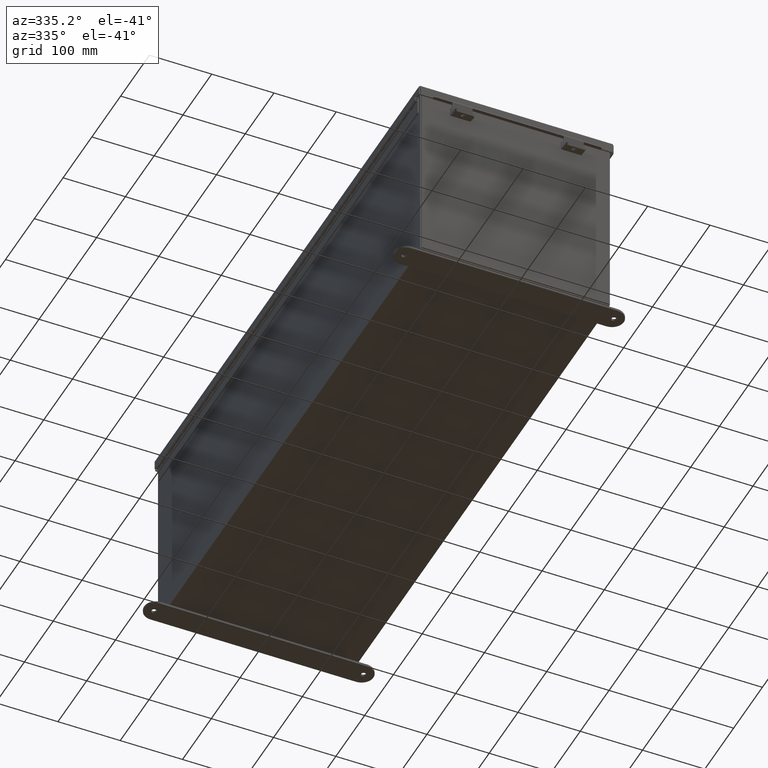
[diagram: clean part render]
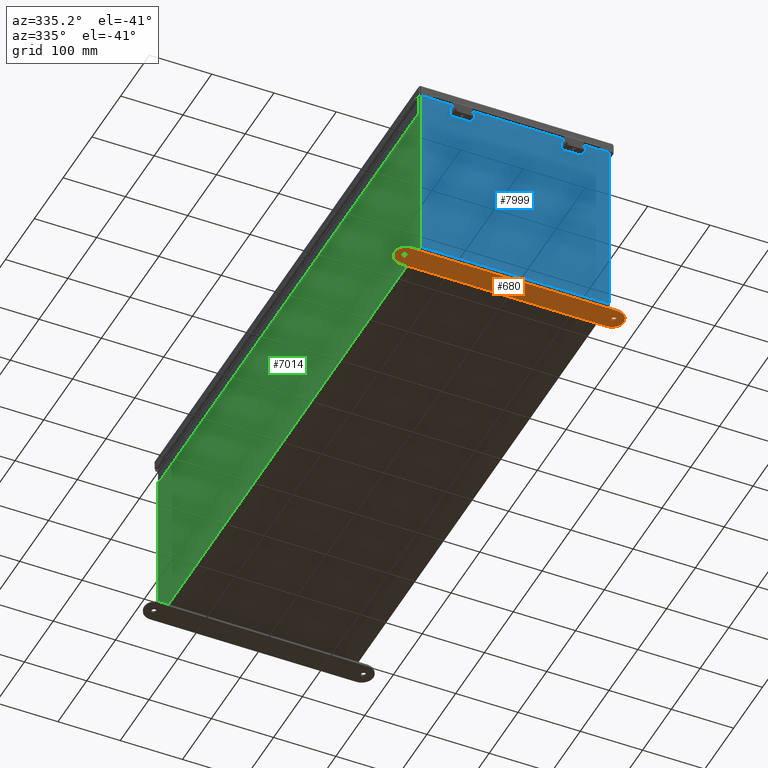
[diagram: same view with three faces highlighted in distinct colors, each labeled with its STEP entity id]
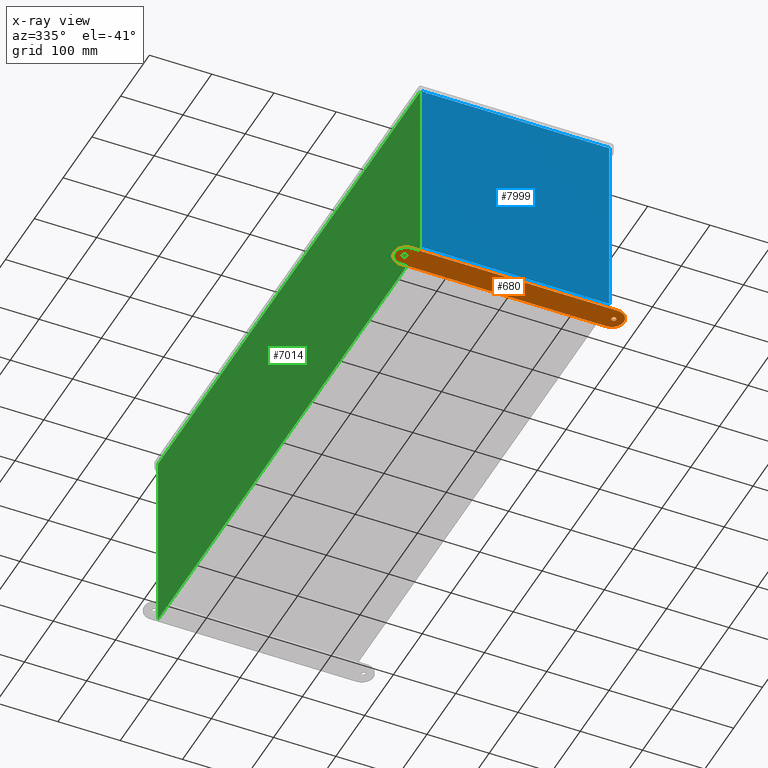
[diagram: x-ray of the same camera — body ghosted, the three highlighted faces saturated]
A machine part, auxiliary view with three faces highlighted in distinct colors.
The next image is the same camera in x-ray (body ghosted, the three faces saturated) — at least one of them is partly hidden behind the body in this view.
Their STEP definitions:

[orange] entity #680 — the highlighted planar face has unit normal (0, 0, -1).
#410 = VERTEX_POINT ( 'NONE', #18670 ) ;
#680 = ADVANCED_FACE ( 'NONE', ( #14462, #26613, #8469 ), #29515, .T. ) ;
#986 = CARTESIAN_POINT ( 'NONE',  ( -6.500000000000000000, 1.162094064949612300, -0.1345000000000000100 ) ) ;
#997 = EDGE_CURVE ( 'NONE', #23226, #410, #24075, .T. ) ;
#1026 = VERTEX_POINT ( 'NONE', #15839 ) ;
#1368 = ORIENTED_EDGE ( 'NONE', *, *, #18372, .T. ) ;
#1823 = EDGE_LOOP ( 'NONE', ( #1368, #9089 ) ) ;
#1921 = EDGE_CURVE ( 'NONE', #9717, #1026, #14747, .T. ) ;
#1933 = LINE ( 'NONE', #18808, #26162 ) ;
#2966 = CARTESIAN_POINT ( 'NONE',  ( 6.500000000000000000, 1.162094064949614100, -0.1345000000000000100 ) ) ;
#3501 = AXIS2_PLACEMENT_3D ( 'NONE', #25441, #11801, #27754 ) ;
#3983 = CARTESIAN_POINT ( 'NONE',  ( 6.500000000000000000, 0.4120940649496125900, -0.1345000000000000100 ) ) ;
#4097 = CARTESIAN_POINT ( 'NONE',  ( 6.781499999999999400, 0.4120940649496083700, -0.1345000000000000100 ) ) ;
#4284 = CIRCLE ( 'NONE', #3501, 0.1564999999999992800 ) ;
#4991 = AXIS2_PLACEMENT_3D ( 'NONE', #8532, #24419, #10815 ) ;
#5049 = ORIENTED_EDGE ( 'NONE', *, *, #1921, .F. ) ;
#5284 = CARTESIAN_POINT ( 'NONE',  ( 7.250000000000001800, 0.4120940649496125900, -0.1345000000000000100 ) ) ;
#5427 = CARTESIAN_POINT ( 'NONE',  ( 6.625000000000000900, 0.4120940649496083700, -0.1345000000000000100 ) ) ;
#5606 = DIRECTION ( 'NONE',  ( -1.000000000000000000, -1.260852920152736700E-016, -0.0000000000000000000 ) ) ;
#6287 = DIRECTION ( 'NONE',  ( -1.000000000000000000, 0.0000000000000000000, 0.0000000000000000000 ) ) ;
#6364 = EDGE_LOOP ( 'NONE', ( #28585, #16755, #13219, #5049, #21971 ) ) ;
#6834 = DIRECTION ( 'NONE',  ( 0.0000000000000000000, 0.0000000000000000000, 1.000000000000000000 ) ) ;
#7725 = DIRECTION ( 'NONE',  ( -1.000000000000000000, 0.0000000000000000000, 0.0000000000000000000 ) ) ;
#8044 = VECTOR ( 'NONE', #5606, 39.37007874015748100 ) ;
#8469 = FACE_BOUND ( 'NONE', #25620, .T. ) ;
#8532 = CARTESIAN_POINT ( 'NONE',  ( -6.500000000000000000, 0.4120940649496124300, -0.1345000000000000100 ) ) ;
#8593 = ORIENTED_EDGE ( 'NONE', *, *, #997, .F. ) ;
#9089 = ORIENTED_EDGE ( 'NONE', *, *, #17118, .T. ) ;
#9279 = CARTESIAN_POINT ( 'NONE',  ( 6.500000000000000000, -0.3379059350503891300, -0.1345000000000000100 ) ) ;
#9596 = CARTESIAN_POINT ( 'NONE',  ( -6.468500000000001500, 0.4120940649496083700, -0.1345000000000000100 ) ) ;
#9717 = VERTEX_POINT ( 'NONE', #2966 ) ;
#9792 = DIRECTION ( 'NONE',  ( 1.000000000000000000, -1.260852920152736700E-016, 0.0000000000000000000 ) ) ;
#10780 = VERTEX_POINT ( 'NONE', #9596 ) ;
#10815 = DIRECTION ( 'NONE',  ( 1.000000000000000000, 0.0000000000000000000, 0.0000000000000000000 ) ) ;
#11196 = CARTESIAN_POINT ( 'NONE',  ( 6.625000000000000900, 0.4120940649496083700, -0.1345000000000000100 ) ) ;
#11276 = CARTESIAN_POINT ( 'NONE',  ( 6.500000000000000000, 0.4120940649496125900, -0.1345000000000000100 ) ) ;
#11345 = DIRECTION ( 'NONE',  ( 0.0000000000000000000, 0.0000000000000000000, 1.000000000000000000 ) ) ;
#11801 = DIRECTION ( 'NONE',  ( 0.0000000000000000000, 0.0000000000000000000, 1.000000000000000000 ) ) ;
#13219 = ORIENTED_EDGE ( 'NONE', *, *, #25738, .F. ) ;
#13454 = DIRECTION ( 'NONE',  ( -1.000000000000000000, 0.0000000000000000000, 0.0000000000000000000 ) ) ;
#13456 = VERTEX_POINT ( 'NONE', #5284 ) ;
#14462 = FACE_OUTER_BOUND ( 'NONE', #6364, .T. ) ;
#14747 = LINE ( 'NONE', #986, #8044 ) ;
#15366 = EDGE_CURVE ( 'NONE', #27841, #17187, #1933, .T. ) ;
#15513 = CIRCLE ( 'NONE', #4991, 0.7499999999999993300 ) ;
#15664 = EDGE_CURVE ( 'NONE', #13456, #9717, #23624, .T. ) ;
#15839 = CARTESIAN_POINT ( 'NONE',  ( -6.500000000000000000, 1.162094064949612300, -0.1345000000000000100 ) ) ;
#16755 = ORIENTED_EDGE ( 'NONE', *, *, #15366, .F. ) ;
#16951 = CIRCLE ( 'NONE', #19923, 0.7500000000000015500 ) ;
#17118 = EDGE_CURVE ( 'NONE', #26328, #10780, #27525, .T. ) ;
#17187 = VERTEX_POINT ( 'NONE', #9279 ) ;
#18013 = DIRECTION ( 'NONE',  ( -1.000000000000000000, 0.0000000000000000000, 0.0000000000000000000 ) ) ;
#18372 = EDGE_CURVE ( 'NONE', #10780, #26328, #4284, .T. ) ;
#18670 = CARTESIAN_POINT ( 'NONE',  ( 6.468500000000001500, 0.4120940649496083700, -0.1345000000000000100 ) ) ;
#18808 = CARTESIAN_POINT ( 'NONE',  ( -6.500000000000000000, -0.3379059350503874600, -0.1345000000000000100 ) ) ;
#19889 = DIRECTION ( 'NONE',  ( 0.0000000000000000000, 0.0000000000000000000, 1.000000000000000000 ) ) ;
#19923 = AXIS2_PLACEMENT_3D ( 'NONE', #20452, #6834, #22733 ) ;
#20155 = EDGE_CURVE ( 'NONE', #17187, #13456, #16951, .T. ) ;
#20452 = CARTESIAN_POINT ( 'NONE',  ( 6.500000000000000000, 0.4120940649496125900, -0.1345000000000000100 ) ) ;
#20576 = AXIS2_PLACEMENT_3D ( 'NONE', #5427, #21335, #7725 ) ;
#21335 = DIRECTION ( 'NONE',  ( -0.0000000000000000000, -0.0000000000000000000, -1.000000000000000000 ) ) ;
#21971 = ORIENTED_EDGE ( 'NONE', *, *, #15664, .F. ) ;
#22024 = AXIS2_PLACEMENT_3D ( 'NONE', #11276, #22621, #18013 ) ;
#22621 = DIRECTION ( 'NONE',  ( -0.0000000000000000000, 0.0000000000000000000, -1.000000000000000000 ) ) ;
#22733 = DIRECTION ( 'NONE',  ( -1.000000000000000000, 0.0000000000000000000, 0.0000000000000000000 ) ) ;
#22899 = AXIS2_PLACEMENT_3D ( 'NONE', #3983, #19889, #6287 ) ;
#22980 = AXIS2_PLACEMENT_3D ( 'NONE', #11196, #27137, #13454 ) ;
#23226 = VERTEX_POINT ( 'NONE', #4097 ) ;
#23624 = CIRCLE ( 'NONE', #22899, 0.7500000000000015500 ) ;
#24075 = CIRCLE ( 'NONE', #22980, 0.1564999999999992800 ) ;
#24154 = EDGE_CURVE ( 'NONE', #410, #23226, #25254, .T. ) ;
#24419 = DIRECTION ( 'NONE',  ( 0.0000000000000000000, 0.0000000000000000000, 1.000000000000000000 ) ) ;
#24636 = AXIS2_PLACEMENT_3D ( 'NONE', #24973, #11345, #27289 ) ;
#24973 = CARTESIAN_POINT ( 'NONE',  ( -6.625000000000000900, 0.4120940649496083700, -0.1345000000000000100 ) ) ;
#25254 = CIRCLE ( 'NONE', #20576, 0.1564999999999992800 ) ;
#25441 = CARTESIAN_POINT ( 'NONE',  ( -6.625000000000000900, 0.4120940649496083700, -0.1345000000000000100 ) ) ;
#25620 = EDGE_LOOP ( 'NONE', ( #8593, #27739 ) ) ;
#25738 = EDGE_CURVE ( 'NONE', #1026, #27841, #15513, .T. ) ;
#26162 = VECTOR ( 'NONE', #9792, 39.37007874015748100 ) ;
#26328 = VERTEX_POINT ( 'NONE', #27743 ) ;
#26450 = CARTESIAN_POINT ( 'NONE',  ( -6.500000000000000000, -0.3379059350503874600, -0.1345000000000000100 ) ) ;
#26613 = FACE_BOUND ( 'NONE', #1823, .T. ) ;
#27137 = DIRECTION ( 'NONE',  ( -0.0000000000000000000, -0.0000000000000000000, -1.000000000000000000 ) ) ;
#27289 = DIRECTION ( 'NONE',  ( -1.000000000000000000, 0.0000000000000000000, 0.0000000000000000000 ) ) ;
#27525 = CIRCLE ( 'NONE', #24636, 0.1564999999999992800 ) ;
#27739 = ORIENTED_EDGE ( 'NONE', *, *, #24154, .F. ) ;
#27743 = CARTESIAN_POINT ( 'NONE',  ( -6.781499999999999400, 0.4120940649496083700, -0.1345000000000000100 ) ) ;
#27754 = DIRECTION ( 'NONE',  ( -1.000000000000000000, 0.0000000000000000000, 0.0000000000000000000 ) ) ;
#27841 = VERTEX_POINT ( 'NONE', #26450 ) ;
#28585 = ORIENTED_EDGE ( 'NONE', *, *, #20155, .F. ) ;
#29515 = PLANE ( 'NONE',  #22024 ) ;

[blue] entity #7999 — the highlighted planar face has unit normal (-0, 1, -0).
#152 = DIRECTION ( 'NONE',  ( 0.0000000000000000000, 0.0000000000000000000, -1.000000000000000000 ) ) ;
#345 = CARTESIAN_POINT ( 'NONE',  ( 0.0000000000000000000, 0.0000000000000000000, 0.0000000000000000000 ) ) ;
#1359 = EDGE_CURVE ( 'NONE', #9257, #13226, #16189, .T. ) ;
#1381 = VERTEX_POINT ( 'NONE', #26421 ) ;
#1404 = DIRECTION ( 'NONE',  ( 0.0000000000000000000, 0.0000000000000000000, -1.000000000000000000 ) ) ;
#1410 = VECTOR ( 'NONE', #17068, 39.37007874015748100 ) ;
#1747 = LINE ( 'NONE', #23094, #19195 ) ;
#2101 = EDGE_CURVE ( 'NONE', #9257, #1381, #21195, .T. ) ;
#2326 = VECTOR ( 'NONE', #25323, 39.37007874015748100 ) ;
#2622 = CIRCLE ( 'NONE', #22076, 0.01867500000000058700 ) ;
#2653 = DIRECTION ( 'NONE',  ( -5.526334185345597900E-031, -1.000000000000000000, -0.0000000000000000000 ) ) ;
#3469 = CARTESIAN_POINT ( 'NONE',  ( -5.582300000000009800, 2.185478394931410600E-015, 5.912299999999998300 ) ) ;
#4368 = CIRCLE ( 'NONE', #27774, 0.01867500000000058700 ) ;
#4462 = EDGE_CURVE ( 'NONE', #19100, #23495, #27640, .T. ) ;
#4759 = CARTESIAN_POINT ( 'NONE',  ( -5.619650000000017800, 0.0000000000000000000, 5.874949999999999200 ) ) ;
#5540 = ORIENTED_EDGE ( 'NONE', *, *, #2101, .T. ) ;
#5752 = CARTESIAN_POINT ( 'NONE',  ( -5.600975000000017800, 0.0000000000000000000, 5.874949999999999200 ) ) ;
#7605 = EDGE_CURVE ( 'NONE', #19100, #20450, #24907, .T. ) ;
#7677 = ORIENTED_EDGE ( 'NONE', *, *, #14806, .F. ) ;
#7715 = LINE ( 'NONE', #20855, #2326 ) ;
#7861 = ORIENTED_EDGE ( 'NONE', *, *, #9070, .T. ) ;
#7968 = VERTEX_POINT ( 'NONE', #4759 ) ;
#7999 = ADVANCED_FACE ( 'NONE', ( #16317 ), #13962, .F. ) ;
#8039 = DIRECTION ( 'NONE',  ( 0.0000000000000000000, 0.0000000000000000000, -1.000000000000000000 ) ) ;
#8436 = ORIENTED_EDGE ( 'NONE', *, *, #22127, .F. ) ;
#8591 = CARTESIAN_POINT ( 'NONE',  ( -5.925300000000009800, 0.0000000000000000000, -5.925299999999999100 ) ) ;
#9070 = EDGE_CURVE ( 'NONE', #1381, #23511, #1747, .T. ) ;
#9163 = CARTESIAN_POINT ( 'NONE',  ( 5.619649999999980500, 0.0000000000000000000, 5.874950000000001000 ) ) ;
#9257 = VERTEX_POINT ( 'NONE', #21789 ) ;
#9380 = DIRECTION ( 'NONE',  ( 9.220960942616447800E-017, 0.0000000000000000000, -1.000000000000000000 ) ) ;
#9872 = EDGE_LOOP ( 'NONE', ( #27748, #22895, #28466, #26439, #7677, #8436, #23196, #5540, #7861, #17246, #16689, #14531 ) ) ;
#10696 = CARTESIAN_POINT ( 'NONE',  ( -5.925300000000009800, 0.0000000000000000000, 5.925300000000002700 ) ) ;
#10761 = DIRECTION ( 'NONE',  ( 1.000000000000000000, 5.526334185345597900E-031, 0.0000000000000000000 ) ) ;
#11827 = CARTESIAN_POINT ( 'NONE',  ( 5.582299999999979600, 0.0000000000000000000, 5.874950000000001000 ) ) ;
#11972 = CARTESIAN_POINT ( 'NONE',  ( -5.619650000000008900, 0.0000000000000000000, 5.925300000000000000 ) ) ;
#13226 = VERTEX_POINT ( 'NONE', #9163 ) ;
#13385 = VERTEX_POINT ( 'NONE', #11827 ) ;
#13768 = DIRECTION ( 'NONE',  ( 5.526334185345597900E-031, 1.000000000000000000, -0.0000000000000000000 ) ) ;
#13962 = PLANE ( 'NONE',  #21816 ) ;
#14273 = VERTEX_POINT ( 'NONE', #10696 ) ;
#14355 = VECTOR ( 'NONE', #21704, 39.37007874015748100 ) ;
#14531 = ORIENTED_EDGE ( 'NONE', *, *, #15540, .T. ) ;
#14748 = VECTOR ( 'NONE', #27836, 39.37007874015748100 ) ;
#14806 = EDGE_CURVE ( 'NONE', #13385, #20450, #21555, .T. ) ;
#14846 = VERTEX_POINT ( 'NONE', #11972 ) ;
#14919 = DIRECTION ( 'NONE',  ( 0.0000000000000000000, 0.0000000000000000000, -1.000000000000000000 ) ) ;
#15080 = VECTOR ( 'NONE', #10761, 39.37007874015748100 ) ;
#15110 = CARTESIAN_POINT ( 'NONE',  ( -5.925300000000009800, 0.0000000000000000000, -5.925299999999999100 ) ) ;
#15540 = EDGE_CURVE ( 'NONE', #14273, #14846, #20432, .T. ) ;
#16189 = LINE ( 'NONE', #26323, #27660 ) ;
#16317 = FACE_OUTER_BOUND ( 'NONE', #9872, .T. ) ;
#16418 = CARTESIAN_POINT ( 'NONE',  ( 5.582299999999990300, 0.0000000000000000000, 9.834652777191348400E-015 ) ) ;
#16689 = ORIENTED_EDGE ( 'NONE', *, *, #23602, .T. ) ;
#17068 = DIRECTION ( 'NONE',  ( 1.000000000000000000, 5.526334185345597900E-031, -0.0000000000000000000 ) ) ;
#17246 = ORIENTED_EDGE ( 'NONE', *, *, #19379, .T. ) ;
#17307 = CARTESIAN_POINT ( 'NONE',  ( -5.582300000000008900, 0.0000000000000000000, 0.0000000000000000000 ) ) ;
#18059 = LINE ( 'NONE', #8591, #18804 ) ;
#18550 = DIRECTION ( 'NONE',  ( 0.0000000000000000000, 0.0000000000000000000, -1.000000000000000000 ) ) ;
#18804 = VECTOR ( 'NONE', #24472, 39.37007874015748100 ) ;
#18914 = CARTESIAN_POINT ( 'NONE',  ( -5.582300000000008900, 2.185478394931410600E-015, 5.912299999999998300 ) ) ;
#19100 = VERTEX_POINT ( 'NONE', #18914 ) ;
#19169 = CARTESIAN_POINT ( 'NONE',  ( -5.925300000000009800, 0.0000000000000000000, 5.925300000000002700 ) ) ;
#19195 = VECTOR ( 'NONE', #9380, 39.37007874015748100 ) ;
#19250 = CARTESIAN_POINT ( 'NONE',  ( 5.582299999999990300, 0.0000000000000000000, 5.912300000000000100 ) ) ;
#19379 = EDGE_CURVE ( 'NONE', #23511, #26625, #18059, .T. ) ;
#20432 = LINE ( 'NONE', #23973, #14355 ) ;
#20450 = VERTEX_POINT ( 'NONE', #19250 ) ;
#20665 = LINE ( 'NONE', #19169, #26019 ) ;
#20855 = CARTESIAN_POINT ( 'NONE',  ( -5.619650000000008900, 0.0000000000000000000, 0.0000000000000000000 ) ) ;
#20997 = EDGE_CURVE ( 'NONE', #7968, #14846, #7715, .T. ) ;
#21187 = CARTESIAN_POINT ( 'NONE',  ( -5.582300000000018700, 0.0000000000000000000, 5.874949999999999200 ) ) ;
#21195 = LINE ( 'NONE', #24268, #15080 ) ;
#21555 = LINE ( 'NONE', #16418, #14748 ) ;
#21560 = VECTOR ( 'NONE', #1404, 39.37007874015748100 ) ;
#21564 = DIRECTION ( 'NONE',  ( 0.0000000000000000000, 0.0000000000000000000, 1.000000000000000000 ) ) ;
#21645 = DIRECTION ( 'NONE',  ( 5.526334185345597900E-031, 1.000000000000000000, -0.0000000000000000000 ) ) ;
#21704 = DIRECTION ( 'NONE',  ( 1.000000000000000000, 5.526334185345597900E-031, 0.0000000000000000000 ) ) ;
#21789 = CARTESIAN_POINT ( 'NONE',  ( 5.619649999999989400, 0.0000000000000000000, 5.925300000000002700 ) ) ;
#21816 = AXIS2_PLACEMENT_3D ( 'NONE', #345, #2653, #18550 ) ;
#22076 = AXIS2_PLACEMENT_3D ( 'NONE', #27470, #13768, #152 ) ;
#22127 = EDGE_CURVE ( 'NONE', #13226, #13385, #2622, .T. ) ;
#22895 = ORIENTED_EDGE ( 'NONE', *, *, #28285, .F. ) ;
#23094 = CARTESIAN_POINT ( 'NONE',  ( 5.925299999999990200, 0.0000000000000000000, 5.925300000000000000 ) ) ;
#23196 = ORIENTED_EDGE ( 'NONE', *, *, #1359, .F. ) ;
#23495 = VERTEX_POINT ( 'NONE', #21187 ) ;
#23511 = VERTEX_POINT ( 'NONE', #25757 ) ;
#23602 = EDGE_CURVE ( 'NONE', #26625, #14273, #20665, .T. ) ;
#23973 = CARTESIAN_POINT ( 'NONE',  ( -5.925300000000009800, 0.0000000000000000000, 5.925300000000002700 ) ) ;
#24268 = CARTESIAN_POINT ( 'NONE',  ( -5.925300000000009800, 0.0000000000000000000, 5.925300000000002700 ) ) ;
#24472 = DIRECTION ( 'NONE',  ( -1.000000000000000000, -5.532854492637916100E-031, 9.220960942616447800E-017 ) ) ;
#24907 = LINE ( 'NONE', #3469, #1410 ) ;
#25323 = DIRECTION ( 'NONE',  ( 0.0000000000000000000, 0.0000000000000000000, 1.000000000000000000 ) ) ;
#25757 = CARTESIAN_POINT ( 'NONE',  ( 5.925299999999991100, 0.0000000000000000000, -5.925300000000000000 ) ) ;
#26019 = VECTOR ( 'NONE', #21564, 39.37007874015748100 ) ;
#26323 = CARTESIAN_POINT ( 'NONE',  ( 5.619649999999990300, 0.0000000000000000000, 0.0000000000000000000 ) ) ;
#26421 = CARTESIAN_POINT ( 'NONE',  ( 5.925299999999990200, 0.0000000000000000000, 5.925300000000000000 ) ) ;
#26439 = ORIENTED_EDGE ( 'NONE', *, *, #7605, .T. ) ;
#26625 = VERTEX_POINT ( 'NONE', #15110 ) ;
#27470 = CARTESIAN_POINT ( 'NONE',  ( 5.600974999999979600, 0.0000000000000000000, 5.874950000000001000 ) ) ;
#27640 = LINE ( 'NONE', #17307, #21560 ) ;
#27660 = VECTOR ( 'NONE', #14919, 39.37007874015748100 ) ;
#27748 = ORIENTED_EDGE ( 'NONE', *, *, #20997, .F. ) ;
#27774 = AXIS2_PLACEMENT_3D ( 'NONE', #5752, #21645, #8039 ) ;
#27836 = DIRECTION ( 'NONE',  ( 0.0000000000000000000, 0.0000000000000000000, 1.000000000000000000 ) ) ;
#28285 = EDGE_CURVE ( 'NONE', #23495, #7968, #4368, .T. ) ;
#28466 = ORIENTED_EDGE ( 'NONE', *, *, #4462, .F. ) ;

[green] entity #7014 — the highlighted planar face has unit normal (1, 0, 0).
#610 = AXIS2_PLACEMENT_3D ( 'NONE', #21624, #26203, #12547 ) ;
#678 = EDGE_LOOP ( 'NONE', ( #16358, #7390, #4441, #7870 ) ) ;
#815 = DIRECTION ( 'NONE',  ( 0.0000000000000000000, 1.000000000000000000, 0.0000000000000000000 ) ) ;
#1656 = DIRECTION ( 'NONE',  ( 1.068021197668374100E-031, 1.000000000000000000, -3.048036009064578300E-017 ) ) ;
#1841 = DIRECTION ( 'NONE',  ( -3.503965158194252100E-015, 1.844192188523290500E-016, 1.000000000000000000 ) ) ;
#3344 = VERTEX_POINT ( 'NONE', #20122 ) ;
#4109 = CARTESIAN_POINT ( 'NONE',  ( -6.000000000000001800, 17.92530000000000000, 0.01300000000000039000 ) ) ;
#4316 = FACE_OUTER_BOUND ( 'NONE', #678, .T. ) ;
#4441 = ORIENTED_EDGE ( 'NONE', *, *, #20728, .F. ) ;
#5824 = VECTOR ( 'NONE', #17208, 39.37007874015748100 ) ;
#7014 = ADVANCED_FACE ( 'NONE', ( #4316 ), #23898, .F. ) ;
#7390 = ORIENTED_EDGE ( 'NONE', *, *, #16840, .T. ) ;
#7870 = ORIENTED_EDGE ( 'NONE', *, *, #23790, .T. ) ;
#8309 = VERTEX_POINT ( 'NONE', #17621 ) ;
#9195 = VERTEX_POINT ( 'NONE', #14693 ) ;
#10223 = LINE ( 'NONE', #28956, #14784 ) ;
#10399 = CARTESIAN_POINT ( 'NONE',  ( -6.000000000000001800, 17.92530000000000000, -2.128280327564064900E-014 ) ) ;
#11842 = LINE ( 'NONE', #10399, #5824 ) ;
#12257 = CARTESIAN_POINT ( 'NONE',  ( -6.000000000000043500, -17.92530000000000000, 11.83759999999999800 ) ) ;
#12547 = DIRECTION ( 'NONE',  ( 3.503965158194251300E-015, 0.0000000000000000000, -1.000000000000000000 ) ) ;
#14033 = VECTOR ( 'NONE', #815, 39.37007874015748100 ) ;
#14693 = CARTESIAN_POINT ( 'NONE',  ( -6.000000000000001800, -17.92530000000000000, 0.01300000000000093600 ) ) ;
#14784 = VECTOR ( 'NONE', #1656, 39.37007874015748100 ) ;
#14925 = EDGE_CURVE ( 'NONE', #8309, #3344, #18681, .T. ) ;
#16343 = VECTOR ( 'NONE', #1841, 39.37007874015748100 ) ;
#16358 = ORIENTED_EDGE ( 'NONE', *, *, #14925, .T. ) ;
#16840 = EDGE_CURVE ( 'NONE', #3344, #26693, #11842, .T. ) ;
#17208 = DIRECTION ( 'NONE',  ( 3.503965158194252100E-015, 0.0000000000000000000, -1.000000000000000000 ) ) ;
#17621 = CARTESIAN_POINT ( 'NONE',  ( -6.000000000000043500, -17.92529999999998900, 11.83759999999999800 ) ) ;
#18681 = LINE ( 'NONE', #12257, #14033 ) ;
#20122 = CARTESIAN_POINT ( 'NONE',  ( -6.000000000000043500, 17.92530000000000000, 11.83759999999999800 ) ) ;
#20728 = EDGE_CURVE ( 'NONE', #9195, #26693, #10223, .T. ) ;
#21624 = CARTESIAN_POINT ( 'NONE',  ( -6.000000000000001800, 0.0000000000000000000, -2.128280327564064900E-014 ) ) ;
#23790 = EDGE_CURVE ( 'NONE', #9195, #8309, #27805, .T. ) ;
#23898 = PLANE ( 'NONE',  #610 ) ;
#26203 = DIRECTION ( 'NONE',  ( 1.000000000000000000, 0.0000000000000000000, 3.503965158194251300E-015 ) ) ;
#26693 = VERTEX_POINT ( 'NONE', #4109 ) ;
#26842 = CARTESIAN_POINT ( 'NONE',  ( -6.000000000000001800, -17.92530000000000000, -1.797897460830293300E-014 ) ) ;
#27805 = LINE ( 'NONE', #26842, #16343 ) ;
#28956 = CARTESIAN_POINT ( 'NONE',  ( -6.000000000000001800, 17.92530000000000000, 0.01299999999999984300 ) ) ;